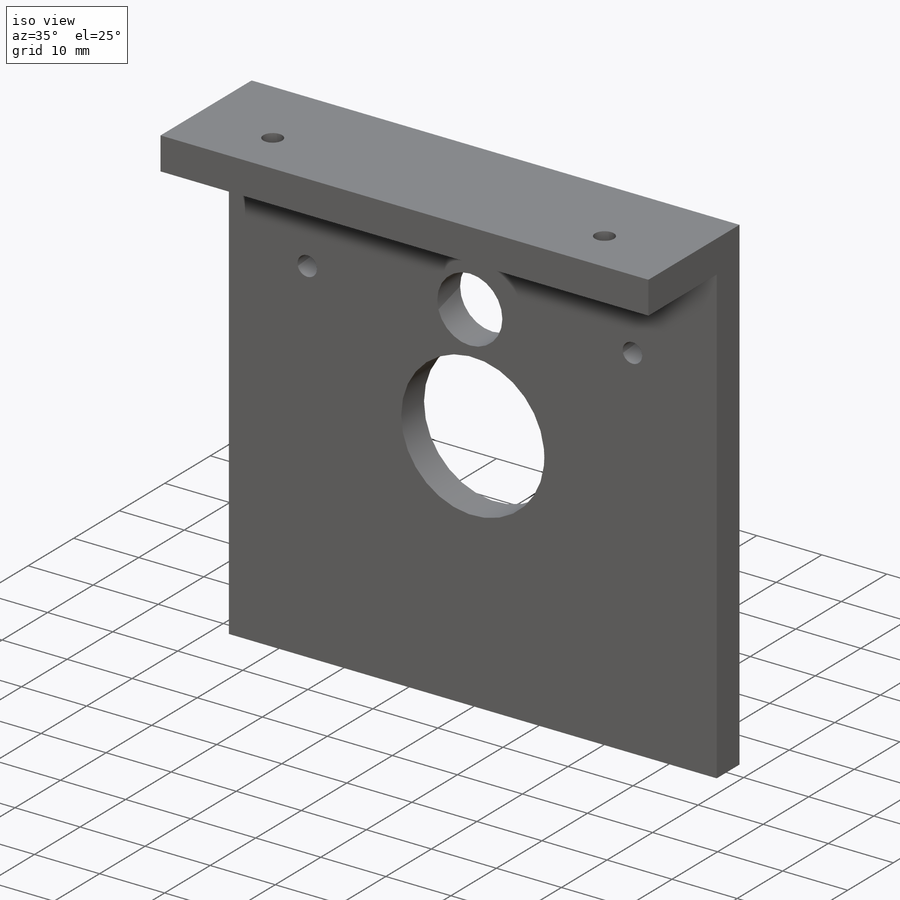
[diagram: iso view]
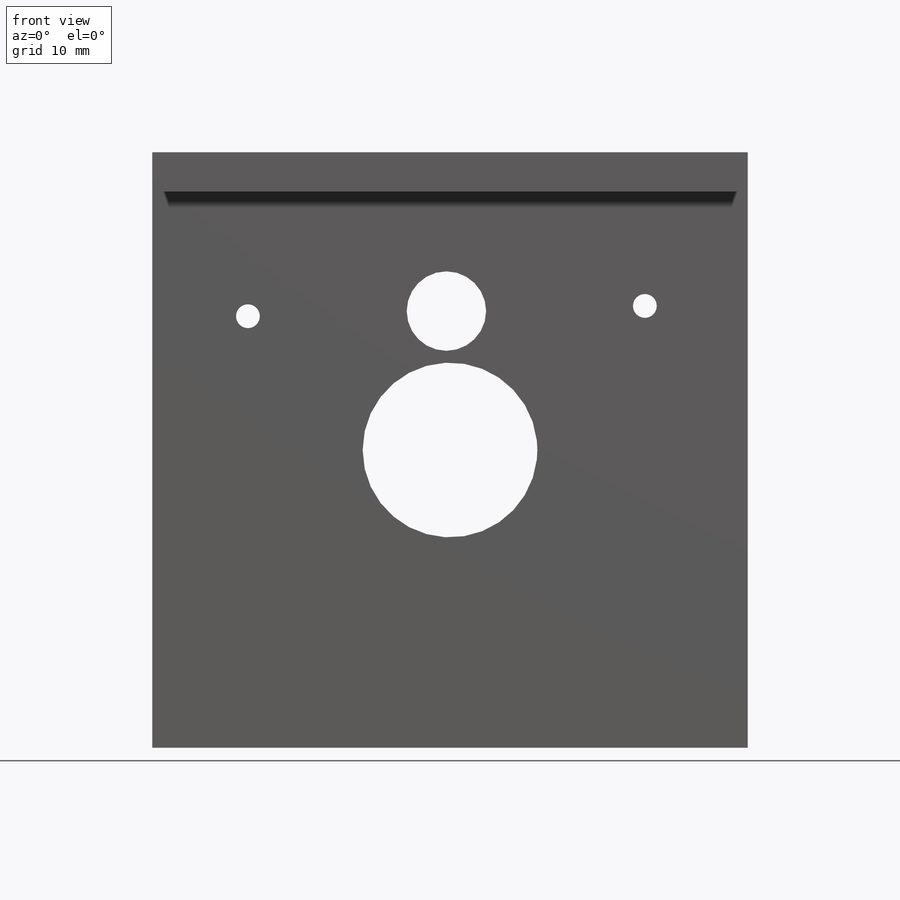
[diagram: front view]
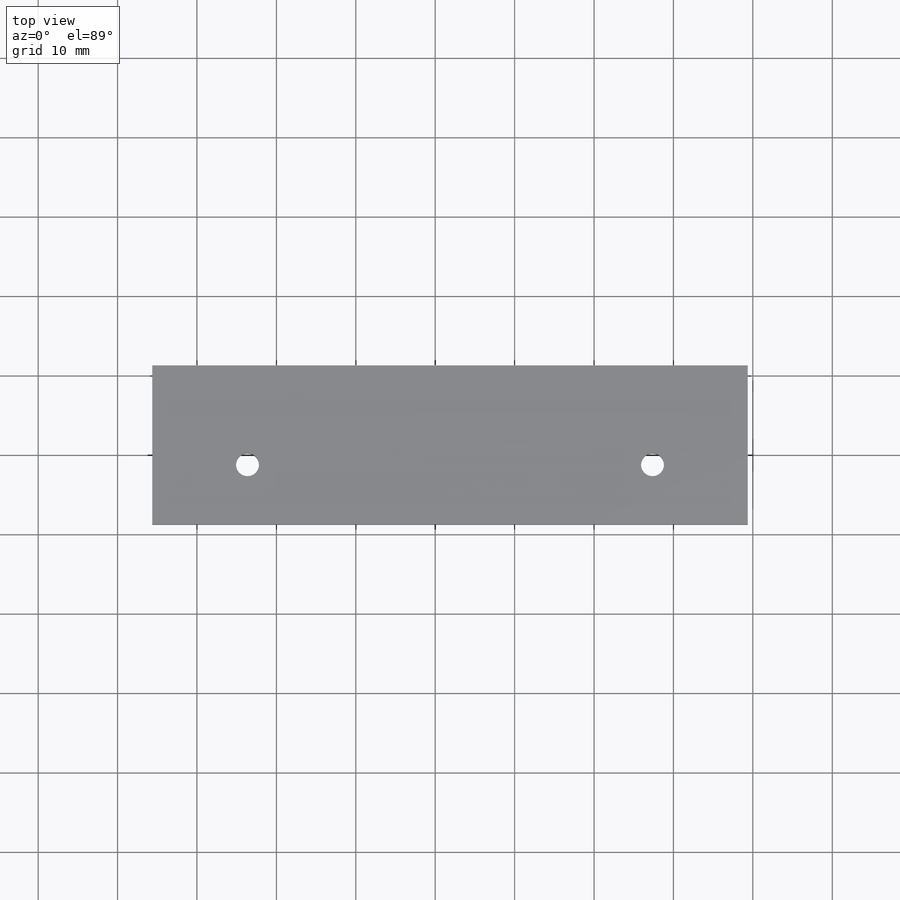
[diagram: top view]
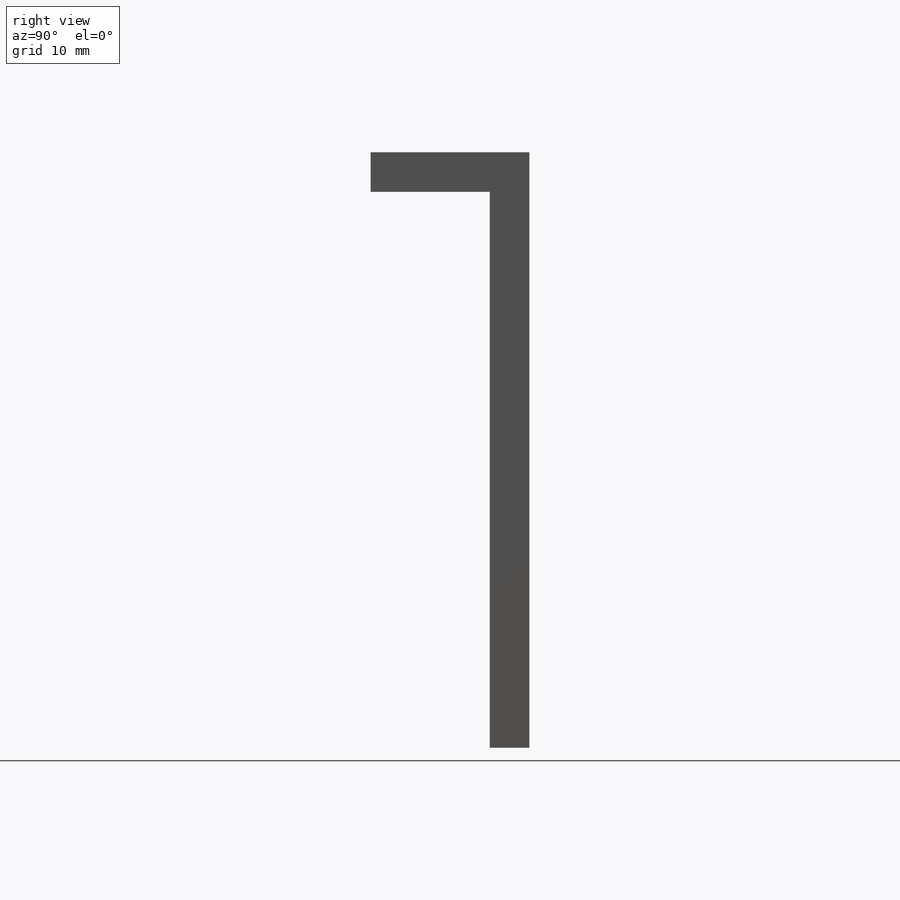
[diagram: right view]
SOLIDWORKS PART (.sldprt)
format: sldprt  version: not decoded by parser v0  size: 207,360 bytes
history: native  units: mm
features: sketch x4, plane x3, extrude x2, material x1, hole x1 (+10 scaffold rows collapsed)
feature tree (21):
  scaffold x10  (default folders/planes/origin — collapsed)
  material  "Malzeme <belirli değil>"
  plane  "Ön Düzlem"
  plane  "Üst Düzlem"
  plane  "Sağ Düzlem"
  sketch  "Sketch1"  dims[c1.D2=22.0mm c1.D3=10.0mm c1.D5=3.0mm c1.D6=3.0mm c1.D1=75.0mm c2.D2=75.0mm c2.D3=10.0mm c2.D4=10.0mm c2.D5=10.0mm c2.D6=10.0mm c3.D4=17.5mm c3.D7=50.0mm c3.D8=25.0mm c3.D9=75.0mm c3.D10=75.0mm]
  extrude  "Boss-Extrude1"  Depth=5mm
  sketch  "Sketch3"  dims[D1=5.0mm]
  extrude  "Boss-Extrude2"  Depth=15mm
  hole  "CSK for M2.5 Flat Head Machine Screw1"  Diameter=2.9mm Depth=5mm
  sketch  "Sketch5"  dims[c1.D1=12.0mm c1.D2=~13.711403mm c2.D2=90.0deg c3.D2=7.5mm c3.D3=7.5mm c3.D4=12.0mm]
  sketch  "Sketch4"  dims[hole-wizard template sketch: 59 standard entries collapsed; hole parameters above]
decode coverage: 7 of 7 modeling features carry decoded parameters
note: ~ marks probable driven/reference dimensions
note: suppression state not decoded; provenance and decode notes live in map.json
